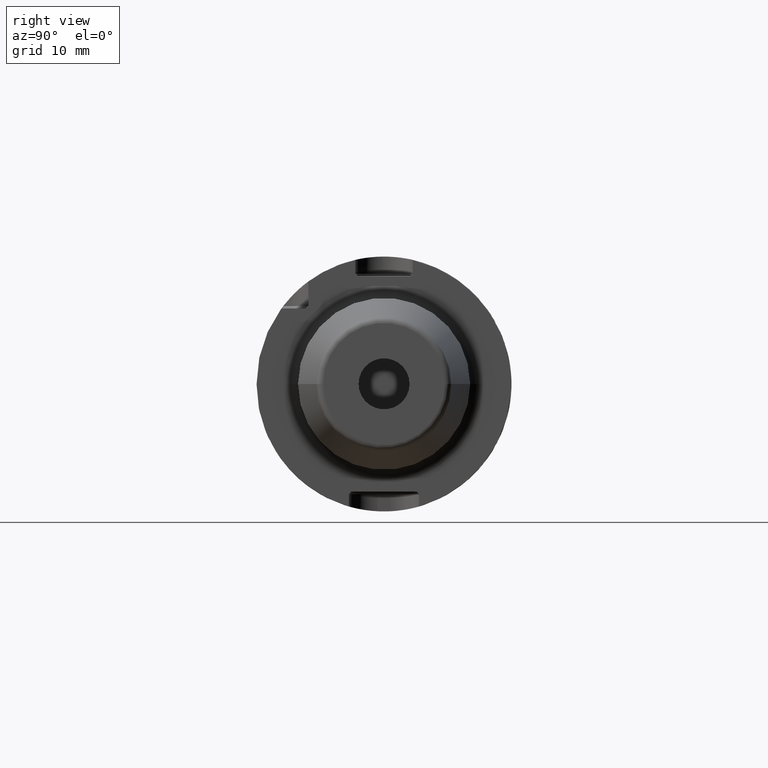
[diagram: clean part render]
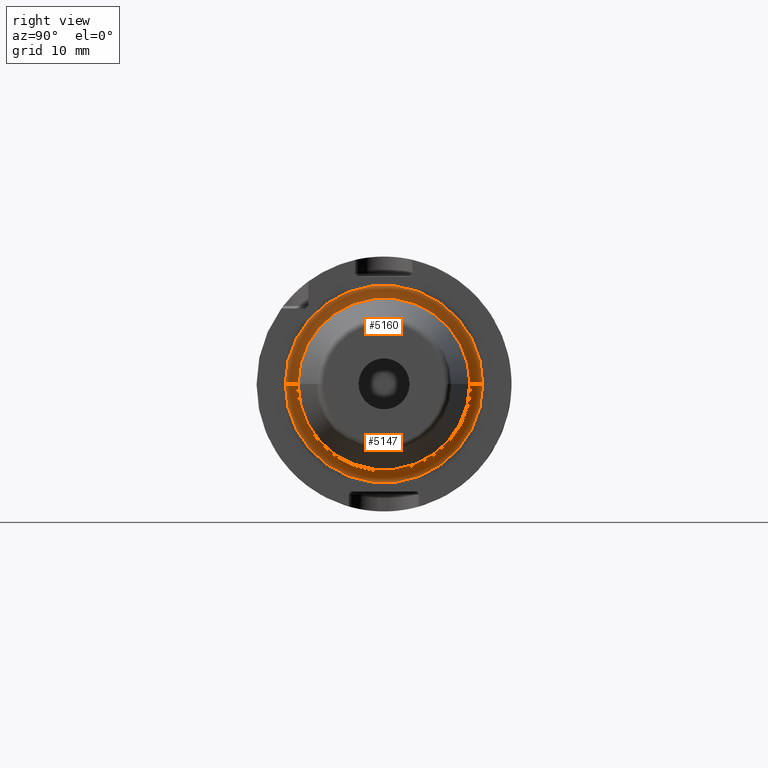
[diagram: same view with one multi-face feature highlighted, each face labeled with its STEP entity id]
A machine part, right view. The highlighted faces form ONE feature: a constant-radius fillet chain: 2 tangent blend faces with common blend radius 2 mm. The faces share edges in the B-rep.
Their STEP definitions:
[1] entity #5160 (Torus):
#1678=CARTESIAN_POINT('',(1.995E1,0.E0,0.E0));
#1679=DIRECTION('',(1.E0,0.E0,0.E0));
#1680=DIRECTION('',(0.E0,1.E0,0.E0));
#1681=AXIS2_PLACEMENT_3D('',#1678,#1679,#1680);
#1841=CARTESIAN_POINT('',(2.195E1,-1.55E1,6.701583732394E-14));
#1842=DIRECTION('',(0.E0,0.E0,-1.E0));
#1843=DIRECTION('',(-1.E0,0.E0,0.E0));
#1844=AXIS2_PLACEMENT_3D('',#1841,#1842,#1843);
#1846=CARTESIAN_POINT('',(2.195E1,1.55E1,-6.888933867799E-14));
#1847=DIRECTION('',(0.E0,0.E0,1.E0));
#1848=DIRECTION('',(-1.E0,0.E0,0.E0));
#1849=AXIS2_PLACEMENT_3D('',#1846,#1847,#1848);
#1851=CARTESIAN_POINT('',(2.195E1,0.E0,0.E0));
#1852=DIRECTION('',(1.E0,0.E0,0.E0));
#1853=DIRECTION('',(0.E0,1.E0,0.E0));
#1854=AXIS2_PLACEMENT_3D('',#1851,#1852,#1853);
#3164=CARTESIAN_POINT('',(1.995E1,-1.55E1,0.E0));
#3165=CARTESIAN_POINT('',(1.995E1,1.55E1,0.E0));
#3166=VERTEX_POINT('',#3164);
#3167=VERTEX_POINT('',#3165);
#3168=CARTESIAN_POINT('',(2.195E1,-1.35E1,0.E0));
#3169=CARTESIAN_POINT('',(2.195E1,1.35E1,0.E0));
#3170=VERTEX_POINT('',#3168);
#3171=VERTEX_POINT('',#3169);
#5148=CARTESIAN_POINT('',(2.195E1,0.E0,0.E0));
#5149=DIRECTION('',(1.E0,0.E0,0.E0));
#5150=DIRECTION('',(0.E0,9.999837828985E-1,-5.695080325013E-3));
#5151=AXIS2_PLACEMENT_3D('',#5148,#5149,#5150);
#5152=TOROIDAL_SURFACE('',#5151,1.55E1,2.E0);
#5153=ORIENTED_EDGE('',*,*,#4936,.F.);
#5154=ORIENTED_EDGE('',*,*,#5143,.T.);
#5156=ORIENTED_EDGE('',*,*,#5155,.T.);
#5157=ORIENTED_EDGE('',*,*,#5139,.F.);
#5158=EDGE_LOOP('',(#5153,#5154,#5156,#5157));
#5159=FACE_OUTER_BOUND('',#5158,.F.);
#5160=ADVANCED_FACE('',(#5159),#5152,.F.);
#1682=CIRCLE('',#1681,1.55E1);
#1845=CIRCLE('',#1844,2.E0);
#1850=CIRCLE('',#1849,2.E0);
#1855=CIRCLE('',#1854,1.35E1);
#4936=EDGE_CURVE('',#3167,#3166,#1682,.T.);
#5139=EDGE_CURVE('',#3166,#3170,#1845,.T.);
#5143=EDGE_CURVE('',#3167,#3171,#1850,.T.);
#5155=EDGE_CURVE('',#3171,#3170,#1855,.T.);
[2] entity #5147 (Torus):
#1673=CARTESIAN_POINT('',(1.995E1,0.E0,0.E0));
#1674=DIRECTION('',(1.E0,0.E0,0.E0));
#1675=DIRECTION('',(0.E0,-1.E0,0.E0));
#1676=AXIS2_PLACEMENT_3D('',#1673,#1674,#1675);
#1841=CARTESIAN_POINT('',(2.195E1,-1.55E1,6.701583732394E-14));
#1842=DIRECTION('',(0.E0,0.E0,-1.E0));
#1843=DIRECTION('',(-1.E0,0.E0,0.E0));
#1844=AXIS2_PLACEMENT_3D('',#1841,#1842,#1843);
#1846=CARTESIAN_POINT('',(2.195E1,1.55E1,-6.888933867799E-14));
#1847=DIRECTION('',(0.E0,0.E0,1.E0));
#1848=DIRECTION('',(-1.E0,0.E0,0.E0));
#1849=AXIS2_PLACEMENT_3D('',#1846,#1847,#1848);
#1861=CARTESIAN_POINT('',(2.195E1,0.E0,0.E0));
#1862=DIRECTION('',(1.E0,0.E0,0.E0));
#1863=DIRECTION('',(0.E0,-1.E0,0.E0));
#1864=AXIS2_PLACEMENT_3D('',#1861,#1862,#1863);
#3164=CARTESIAN_POINT('',(1.995E1,-1.55E1,0.E0));
#3165=CARTESIAN_POINT('',(1.995E1,1.55E1,0.E0));
#3166=VERTEX_POINT('',#3164);
#3167=VERTEX_POINT('',#3165);
#3168=CARTESIAN_POINT('',(2.195E1,-1.35E1,0.E0));
#3169=CARTESIAN_POINT('',(2.195E1,1.35E1,0.E0));
#3170=VERTEX_POINT('',#3168);
#3171=VERTEX_POINT('',#3169);
#5133=CARTESIAN_POINT('',(2.195E1,0.E0,0.E0));
#5134=DIRECTION('',(1.E0,0.E0,0.E0));
#5135=DIRECTION('',(0.E0,-9.999837828985E-1,5.695080325011E-3));
#5136=AXIS2_PLACEMENT_3D('',#5133,#5134,#5135);
#5137=TOROIDAL_SURFACE('',#5136,1.55E1,2.E0);
#5138=ORIENTED_EDGE('',*,*,#4934,.F.);
#5140=ORIENTED_EDGE('',*,*,#5139,.T.);
#5142=ORIENTED_EDGE('',*,*,#5141,.T.);
#5144=ORIENTED_EDGE('',*,*,#5143,.F.);
#5145=EDGE_LOOP('',(#5138,#5140,#5142,#5144));
#5146=FACE_OUTER_BOUND('',#5145,.F.);
#5147=ADVANCED_FACE('',(#5146),#5137,.F.);
#1677=CIRCLE('',#1676,1.55E1);
#1845=CIRCLE('',#1844,2.E0);
#1850=CIRCLE('',#1849,2.E0);
#1865=CIRCLE('',#1864,1.35E1);
#4934=EDGE_CURVE('',#3166,#3167,#1677,.T.);
#5139=EDGE_CURVE('',#3166,#3170,#1845,.T.);
#5141=EDGE_CURVE('',#3170,#3171,#1865,.T.);
#5143=EDGE_CURVE('',#3167,#3171,#1850,.T.);